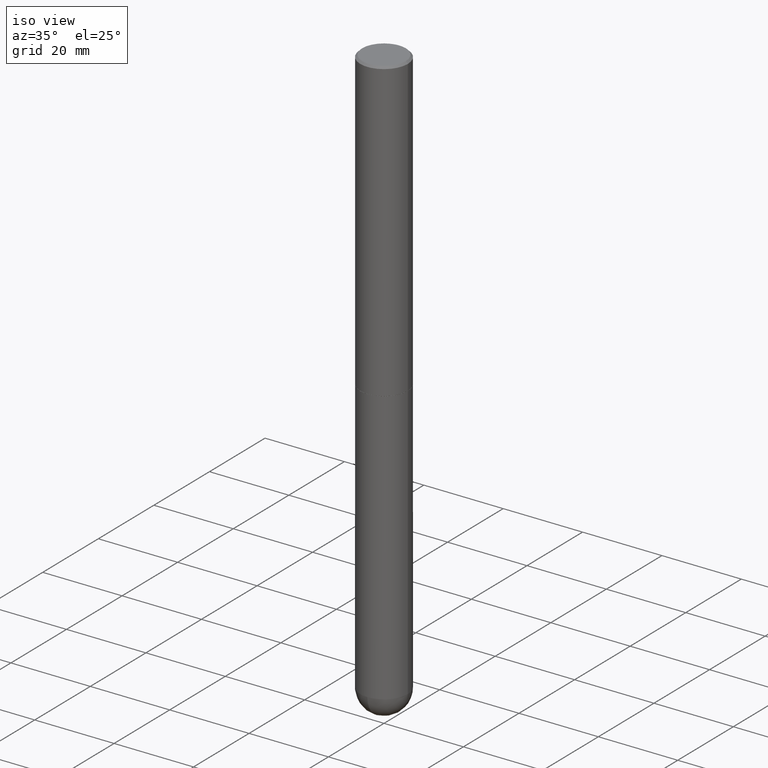
[diagram: clean part render]
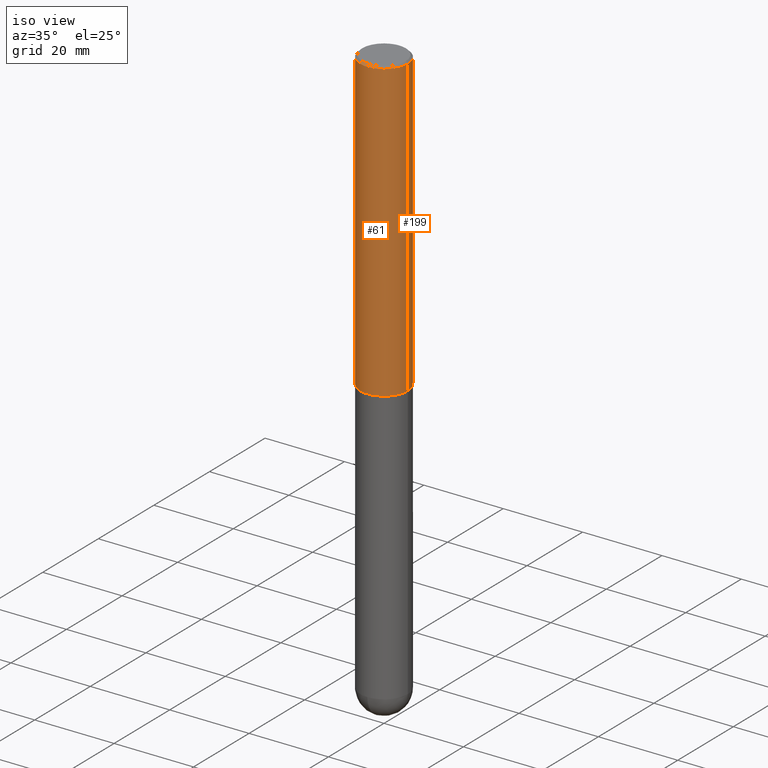
[diagram: same view with one multi-face feature highlighted, each face labeled with its STEP entity id]
A machine part, iso view. The highlighted faces form ONE feature: a constant-radius fillet chain: 2 tangent blend faces with common blend radius 5.9995 mm. The faces share edges in the B-rep.
Their STEP definitions:
[1] entity #199 (Cylinder):
#6 = VERTEX_POINT ( 'NONE', #56 ) ;
#7 = LINE ( 'NONE', #372, #240 ) ;
#10 = ORIENTED_EDGE ( 'NONE', *, *, #402, .T. ) ;
#17 = DIRECTION ( 'NONE',  ( -2.445468806185136877E-29, 3.491481338843145188E-15, 1.000000000000000000 ) ) ;
#22 = AXIS2_PLACEMENT_3D ( 'NONE', #229, #48, #294 ) ;
#35 = DIRECTION ( 'NONE',  ( -2.445468806185136597E-29, 3.491481338843145583E-15, 1.000000000000000000 ) ) ;
#40 = EDGE_CURVE ( 'NONE', #310, #241, #173, .T. ) ;
#45 = ORIENTED_EDGE ( 'NONE', *, *, #395, .F. ) ;
#47 = DIRECTION ( 'NONE',  ( 1.000000000000000000, -6.982962677686263555E-15, 0.000000000000000000 ) ) ;
#48 = DIRECTION ( 'NONE',  ( -2.445468806185136597E-29, 3.491481338843145583E-15, 1.000000000000000000 ) ) ;
#50 = DIRECTION ( 'NONE',  ( -2.445468806185136877E-29, 3.491481338843145188E-15, 1.000000000000000000 ) ) ;
#56 = CARTESIAN_POINT ( 'NONE',  ( -0.2362000000000003264, -3.509515605454725737E-15, -2.951700000000000212 ) ) ;
#105 = CARTESIAN_POINT ( 'NONE',  ( -0.2361999999999999933, 1.579546157692633030E-15, -0.02000000000000005246 ) ) ;
#106 = CARTESIAN_POINT ( 'NONE',  ( 0.2362000000000003264, -1.195518125233281169E-14, -2.951700000000000212 ) ) ;
#115 = CARTESIAN_POINT ( 'NONE',  ( 0.2361999999999999933, -1.690279253850498771E-15, -0.02000000000000005246 ) ) ;
#143 = ORIENTED_EDGE ( 'NONE', *, *, #40, .F. ) ;
#153 = VECTOR ( 'NONE', #17, 39.37007874015748143 ) ;
#164 = FACE_OUTER_BOUND ( 'NONE', #280, .T. ) ;
#173 = CIRCLE ( 'NONE', #22, 0.2361999999999999933 ) ;
#176 = VERTEX_POINT ( 'NONE', #106 ) ;
#199 = ADVANCED_FACE ( 'NONE', ( #164 ), #283, .T. ) ;
#221 = AXIS2_PLACEMENT_3D ( 'NONE', #313, #35, #357 ) ;
#222 = AXIS2_PLACEMENT_3D ( 'NONE', #257, #376, #47 ) ;
#229 = CARTESIAN_POINT ( 'NONE',  ( 4.890937612370285420E-31, -6.982962677686308865E-17, -0.02000000000000005246 ) ) ;
#240 = VECTOR ( 'NONE', #50, 39.37007874015748143 ) ;
#241 = VERTEX_POINT ( 'NONE', #105 ) ;
#257 = CARTESIAN_POINT ( 'NONE',  ( 7.218290275216666916E-29, -1.030580546786331359E-14, -2.951700000000000212 ) ) ;
#258 = ORIENTED_EDGE ( 'NONE', *, *, #321, .T. ) ;
#274 = CIRCLE ( 'NONE', #222, 0.2362000000000003264 ) ;
#280 = EDGE_LOOP ( 'NONE', ( #10, #258, #143, #45 ) ) ;
#283 = CYLINDRICAL_SURFACE ( 'NONE', #221, 0.2362000000000001598 ) ;
#293 = LINE ( 'NONE', #342, #153 ) ;
#294 = DIRECTION ( 'NONE',  ( 1.000000000000000000, -6.982962677686266711E-15, 0.000000000000000000 ) ) ;
#310 = VERTEX_POINT ( 'NONE', #115 ) ;
#313 = CARTESIAN_POINT ( 'NONE',  ( 0.000000000000000000, 0.000000000000000000, 0.000000000000000000 ) ) ;
#321 = EDGE_CURVE ( 'NONE', #6, #241, #293, .T. ) ;
#342 = CARTESIAN_POINT ( 'NONE',  ( -0.2362000000000001598, 1.678301941865357775E-15, -1.161852468318209598E-29 ) ) ;
#357 = DIRECTION ( 'NONE',  ( 1.000000000000000000, -6.982962677686266711E-15, 4.876176775795936353E-29 ) ) ;
#372 = CARTESIAN_POINT ( 'NONE',  ( 0.2362000000000001598, -1.649375784469497314E-15, 1.151752954443000929E-29 ) ) ;
#376 = DIRECTION ( 'NONE',  ( -2.445468806185136597E-29, 3.491481338843145583E-15, 1.000000000000000000 ) ) ;
#395 = EDGE_CURVE ( 'NONE', #176, #310, #7, .T. ) ;
#402 = EDGE_CURVE ( 'NONE', #176, #6, #274, .T. ) ;
[2] entity #61 (Cylinder):
#6 = VERTEX_POINT ( 'NONE', #56 ) ;
#7 = LINE ( 'NONE', #372, #240 ) ;
#17 = DIRECTION ( 'NONE',  ( -2.445468806185136877E-29, 3.491481338843145188E-15, 1.000000000000000000 ) ) ;
#20 = EDGE_LOOP ( 'NONE', ( #212, #286, #270, #330 ) ) ;
#50 = DIRECTION ( 'NONE',  ( -2.445468806185136877E-29, 3.491481338843145188E-15, 1.000000000000000000 ) ) ;
#51 = DIRECTION ( 'NONE',  ( 1.000000000000000000, -6.982962677686266711E-15, 4.876176775795936353E-29 ) ) ;
#56 = CARTESIAN_POINT ( 'NONE',  ( -0.2362000000000003264, -3.509515605454725737E-15, -2.951700000000000212 ) ) ;
#61 = ADVANCED_FACE ( 'NONE', ( #377 ), #82, .T. ) ;
#72 = AXIS2_PLACEMENT_3D ( 'NONE', #370, #407, #170 ) ;
#82 = CYLINDRICAL_SURFACE ( 'NONE', #350, 0.2362000000000001598 ) ;
#105 = CARTESIAN_POINT ( 'NONE',  ( -0.2361999999999999933, 1.579546157692633030E-15, -0.02000000000000005246 ) ) ;
#106 = CARTESIAN_POINT ( 'NONE',  ( 0.2362000000000003264, -1.195518125233281169E-14, -2.951700000000000212 ) ) ;
#115 = CARTESIAN_POINT ( 'NONE',  ( 0.2361999999999999933, -1.690279253850498771E-15, -0.02000000000000005246 ) ) ;
#123 = AXIS2_PLACEMENT_3D ( 'NONE', #298, #369, #275 ) ;
#136 = CIRCLE ( 'NONE', #72, 0.2361999999999999933 ) ;
#141 = DIRECTION ( 'NONE',  ( -2.445468806185136597E-29, 3.491481338843145583E-15, 1.000000000000000000 ) ) ;
#153 = VECTOR ( 'NONE', #17, 39.37007874015748143 ) ;
#170 = DIRECTION ( 'NONE',  ( 1.000000000000000000, -6.982962677686266711E-15, 0.000000000000000000 ) ) ;
#176 = VERTEX_POINT ( 'NONE', #106 ) ;
#212 = ORIENTED_EDGE ( 'NONE', *, *, #321, .F. ) ;
#240 = VECTOR ( 'NONE', #50, 39.37007874015748143 ) ;
#241 = VERTEX_POINT ( 'NONE', #105 ) ;
#265 = EDGE_CURVE ( 'NONE', #6, #176, #340, .T. ) ;
#270 = ORIENTED_EDGE ( 'NONE', *, *, #395, .T. ) ;
#275 = DIRECTION ( 'NONE',  ( 1.000000000000000000, -6.982962677686263555E-15, 0.000000000000000000 ) ) ;
#286 = ORIENTED_EDGE ( 'NONE', *, *, #265, .T. ) ;
#293 = LINE ( 'NONE', #342, #153 ) ;
#298 = CARTESIAN_POINT ( 'NONE',  ( 7.218290275216666916E-29, -1.030580546786331359E-14, -2.951700000000000212 ) ) ;
#302 = CARTESIAN_POINT ( 'NONE',  ( 0.000000000000000000, 0.000000000000000000, 0.000000000000000000 ) ) ;
#310 = VERTEX_POINT ( 'NONE', #115 ) ;
#319 = EDGE_CURVE ( 'NONE', #241, #310, #136, .T. ) ;
#321 = EDGE_CURVE ( 'NONE', #6, #241, #293, .T. ) ;
#330 = ORIENTED_EDGE ( 'NONE', *, *, #319, .F. ) ;
#340 = CIRCLE ( 'NONE', #123, 0.2362000000000003264 ) ;
#342 = CARTESIAN_POINT ( 'NONE',  ( -0.2362000000000001598, 1.678301941865357775E-15, -1.161852468318209598E-29 ) ) ;
#350 = AXIS2_PLACEMENT_3D ( 'NONE', #302, #141, #51 ) ;
#369 = DIRECTION ( 'NONE',  ( -2.445468806185136597E-29, 3.491481338843145583E-15, 1.000000000000000000 ) ) ;
#370 = CARTESIAN_POINT ( 'NONE',  ( 4.890937612370285420E-31, -6.982962677686308865E-17, -0.02000000000000005246 ) ) ;
#372 = CARTESIAN_POINT ( 'NONE',  ( 0.2362000000000001598, -1.649375784469497314E-15, 1.151752954443000929E-29 ) ) ;
#377 = FACE_OUTER_BOUND ( 'NONE', #20, .T. ) ;
#395 = EDGE_CURVE ( 'NONE', #176, #310, #7, .T. ) ;
#407 = DIRECTION ( 'NONE',  ( -2.445468806185136597E-29, 3.491481338843145583E-15, 1.000000000000000000 ) ) ;